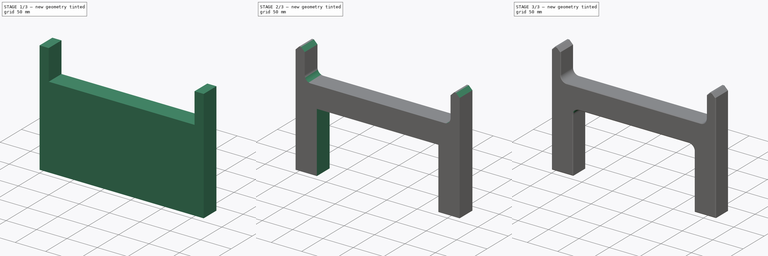
[diagram: build sequence overview — one tinted view per stage of 3, left to right]
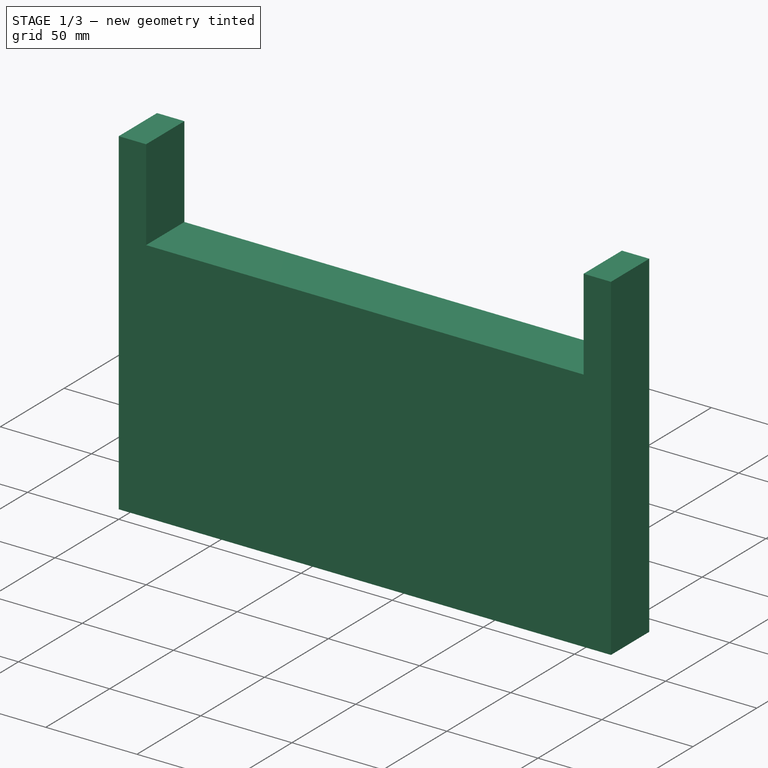
[diagram: stage 1 of 3 — iso view after this stage's code; geometry added in this stage tinted green]
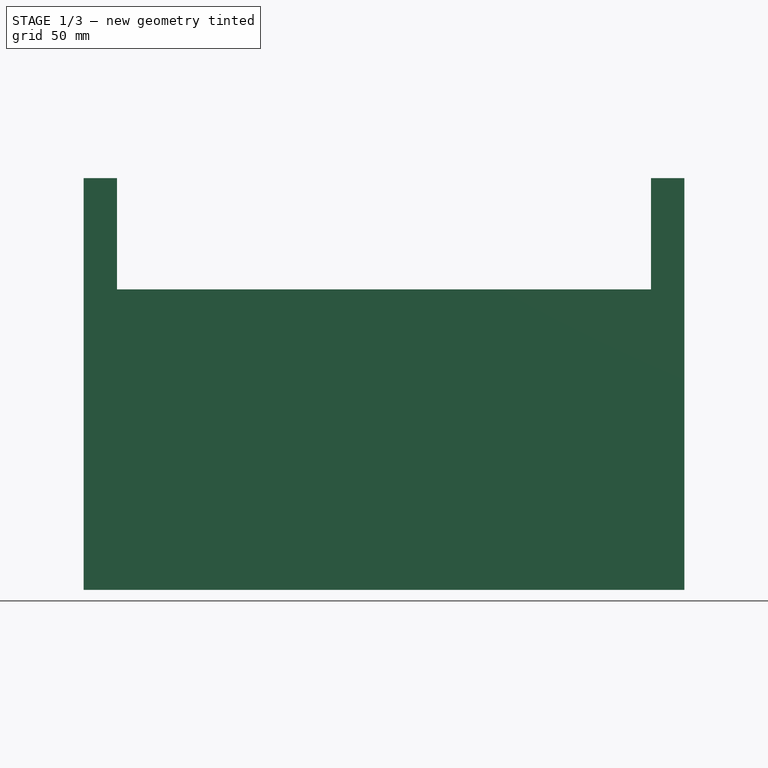
[diagram: stage 1 of 3 — front view after this stage's code; geometry added in this stage tinted green]
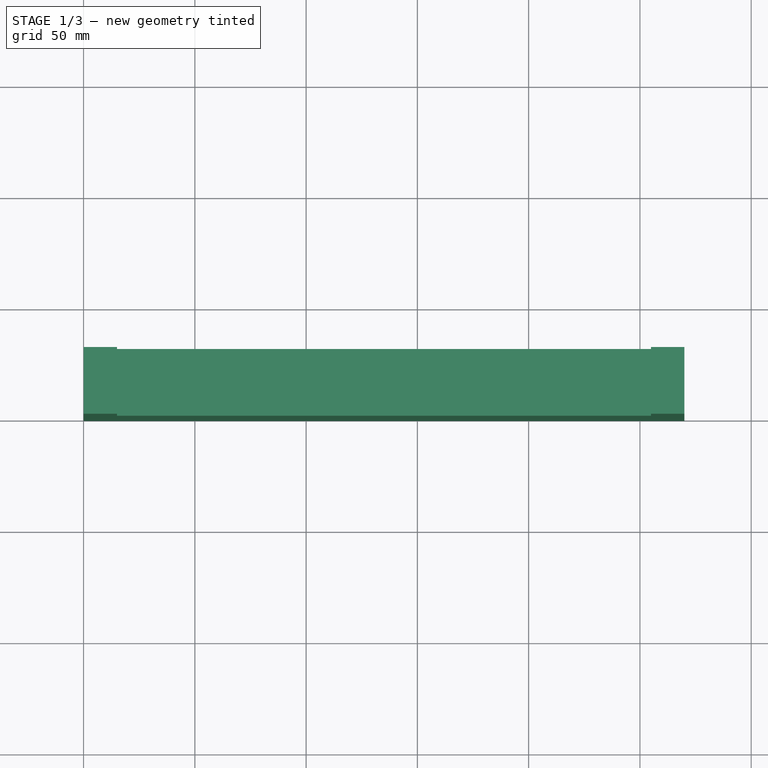
[diagram: stage 1 of 3 — top view after this stage's code; geometry added in this stage tinted green]
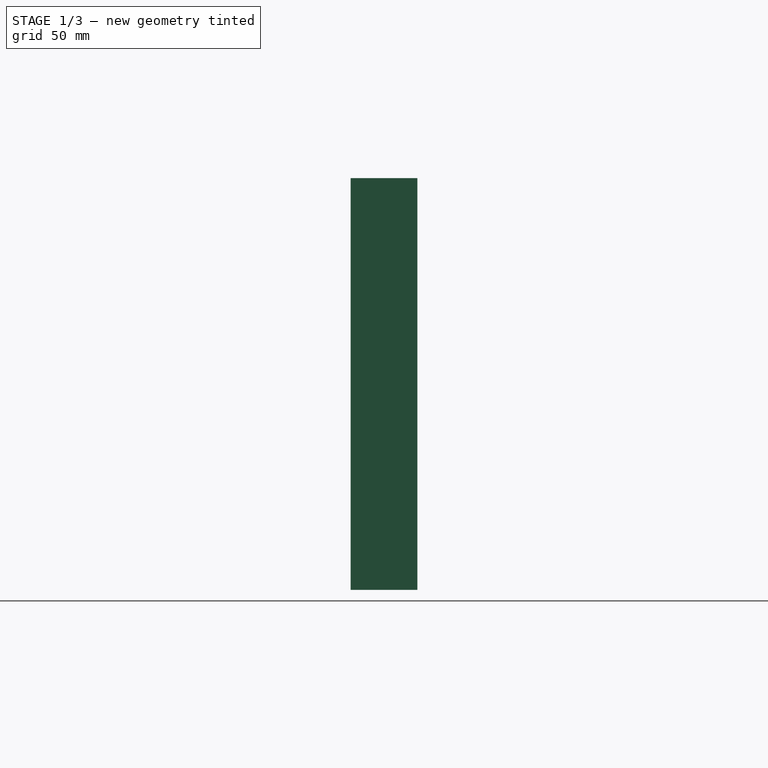
[diagram: stage 1 of 3 — right view after this stage's code; geometry added in this stage tinted green]
FCSTD DOCUMENT  (FreeCAD 0.17R7506 (Git))
Label: xy_parallel_check_fixture
License: CreativeCommons Attribution-ShareAlike
LicenseURL: http://creativecommons.org/licenses/by-sa/4.0/
objects: Sketcher::SketchObject×4, PartDesign::Pocket×2, PartDesign::Fillet×2, PartDesign::Chamfer×2, PartDesign::Pad×1, PartDesign::Body×1
note: 15 computed .brp shape members not serialized (recipe doc carries the construction recipe); baked Part::Feature solids carry a one-line shape summary decoded from their .brp

FEATURE [Sketcher::SketchObject] Sketch
  MapMode = 5
  Support = -> [XY_Plane]
  sketch-geometry (4):
    g0: LineSegment StartX=0 StartY=30 StartZ=0 EndX=270 EndY=30 EndZ=0
    g1: LineSegment StartX=270 StartY=30 StartZ=0 EndX=270 EndY=0 EndZ=0
    g2: LineSegment StartX=270 StartY=0 StartZ=0 EndX=0 EndY=0 EndZ=0
    g3: LineSegment StartX=0 StartY=0 StartZ=0 EndX=0 EndY=30 EndZ=0
  constraints (12):
    c: Coincident(g0,g1)
    c: Coincident(g1,g2)
    c: Coincident(g2,g3)
    c: Coincident(g3,g0)
    c: Horizontal(g0)
    c: Horizontal(g2)
    c: Vertical(g1)
    c: Vertical(g3)
    c: PointOnObject(g1,g-1)
    c: Coincident(g2,g-1)
    c: DistanceY(g3,g3) = 30
    c: DistanceX(g2,g2) = 270
FEATURE [PartDesign::Pad] Pad
  Length = 185
  Length2 = 100
  Profile = -> Sketch
  Type = 0
FEATURE [Sketcher::SketchObject] Sketch001
  ExternalGeometry = -> [Pad]
  MapMode = 5
  Placement = pos=(0,0,185) rot=(0,0,1;0rad)
  Support = -> [Pad]
  sketch-geometry (6):
    g0: LineSegment StartX=15 StartY=64.2632 StartZ=0 EndX=255 EndY=64.2632 EndZ=0
    g1: LineSegment StartX=255 StartY=64.2632 StartZ=0 EndX=255 EndY=-16.6684 EndZ=0
    g2: LineSegment StartX=255 StartY=-16.6684 StartZ=0 EndX=15 EndY=-16.6684 EndZ=0
    g3: LineSegment StartX=15 StartY=-16.6684 StartZ=0 EndX=15 EndY=64.2632 EndZ=0
    g4: LineSegment [constr] StartX=0 StartY=0 StartZ=0 EndX=15 EndY=0 EndZ=0
    g5: LineSegment [constr] StartX=255 StartY=0 StartZ=0 EndX=270 EndY=0 EndZ=0
  constraints (16):
    c: Coincident(g0,g1)
    c: Coincident(g1,g2)
    c: Coincident(g2,g3)
    c: Coincident(g3,g0)
    c: Horizontal(g0)
    c: Horizontal(g2)
    c: Vertical(g1)
    c: Vertical(g3)
    c: DistanceX(g0,g0) = 240
    c: Coincident(g4,g-1)
    c: PointOnObject(g4,g3)
    c: Horizontal(g4)
    c: Horizontal(g5)
    c: Coincident(g5,g-3)
    c: PointOnObject(g5,g1)
    c: Equal(g4,g5)
FEATURE [PartDesign::Pocket] Pocket
  BaseFeature = -> Pad
  Length = 50
  Profile = -> Sketch001
  Type = 0
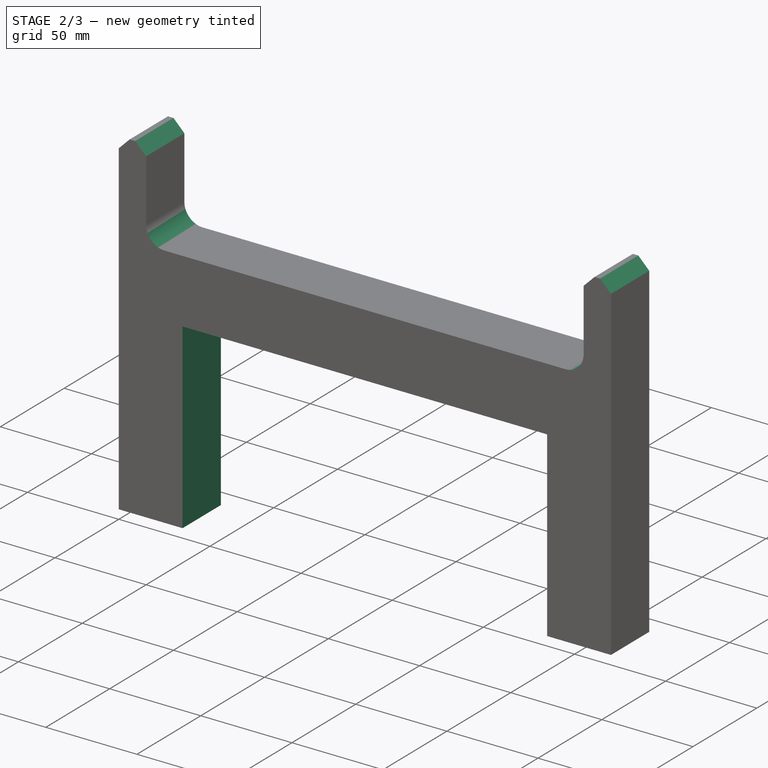
[diagram: stage 2 of 3 — iso view after this stage's code; geometry added in this stage tinted green]
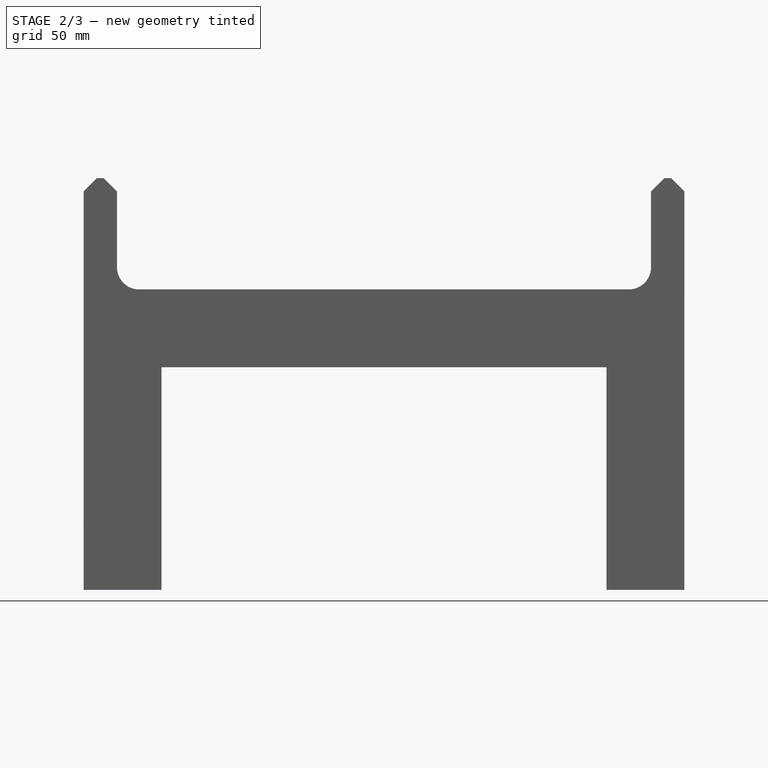
[diagram: stage 2 of 3 — front view after this stage's code; geometry added in this stage tinted green]
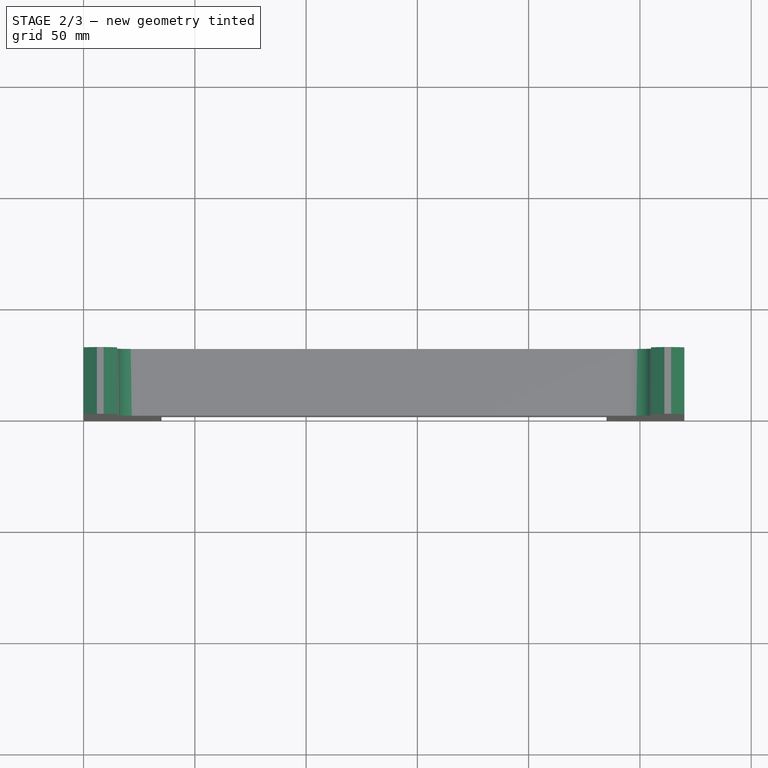
[diagram: stage 2 of 3 — top view after this stage's code; geometry added in this stage tinted green]
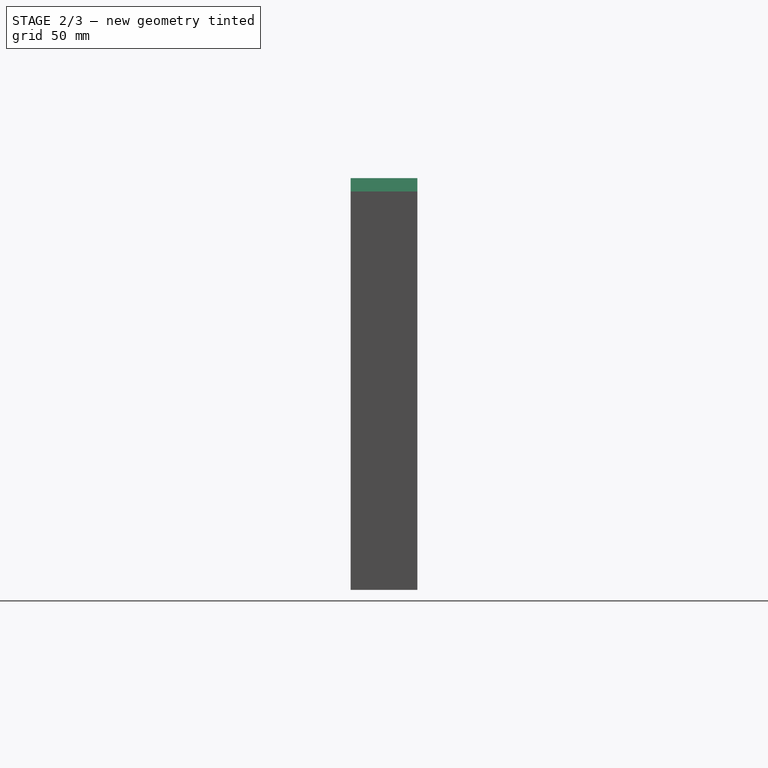
[diagram: stage 2 of 3 — right view after this stage's code; geometry added in this stage tinted green]
FEATURE [PartDesign::Fillet] Fillet
  Base = -> Pocket [Edge19,Edge17]
  BaseFeature = -> Pocket
  Radius = 10
FEATURE [PartDesign::Chamfer] Chamfer
  Base = -> Fillet [Edge29,Edge26,Edge13,Edge16]
  BaseFeature = -> Fillet
  Size = 6
FEATURE [Sketcher::SketchObject] Sketch002
  MapMode = 5
  Placement = pos=(0,0,0) rot=(1,0,0;1.5708rad)
  Support = -> [Chamfer]
FEATURE [Sketcher::SketchObject] Sketch003
  ExternalGeometry = -> [Chamfer]
  MapMode = 5
  Placement = pos=(0,0,0) rot=(1,0,0;1.5708rad)
  Support = -> [Chamfer]
  sketch-geometry (6):
    g0: LineSegment StartX=35 StartY=100 StartZ=0 EndX=235 EndY=100 EndZ=0
    g1: LineSegment StartX=235 StartY=100 StartZ=0 EndX=235 EndY=0 EndZ=0
    g2: LineSegment StartX=235 StartY=0 StartZ=0 EndX=35 EndY=0 EndZ=0
    g3: LineSegment StartX=35 StartY=0 StartZ=0 EndX=35 EndY=100 EndZ=0
    g4: LineSegment [constr] StartX=0 StartY=0 StartZ=0 EndX=35 EndY=0 EndZ=0
    g5: LineSegment [constr] StartX=235 StartY=0 StartZ=0 EndX=270 EndY=0 EndZ=0
  constraints (18):
    c: Coincident(g0,g1)
    c: Coincident(g1,g2)
    c: Coincident(g2,g3)
    c: Coincident(g3,g0)
    c: Horizontal(g0)
    c: Horizontal(g2)
    c: Vertical(g1)
    c: Vertical(g3)
    c: Horizontal(g5)
    c: Horizontal(g4)
    c: Equal(g5,g4)
    c: Coincident(g4,g-1)
    c: Coincident(g5,g-3)
    c: PointOnObject(g5,g1)
    c: PointOnObject(g4,g3)
    c: DistanceX(g0,g0) = 200
    c: Coincident(g2,g4)
    c: DistanceY(g3,g3) = 100
FEATURE [PartDesign::Pocket] Pocket001
  BaseFeature = -> Chamfer
  Length = 5
  Profile = -> Sketch003
  Type = 1
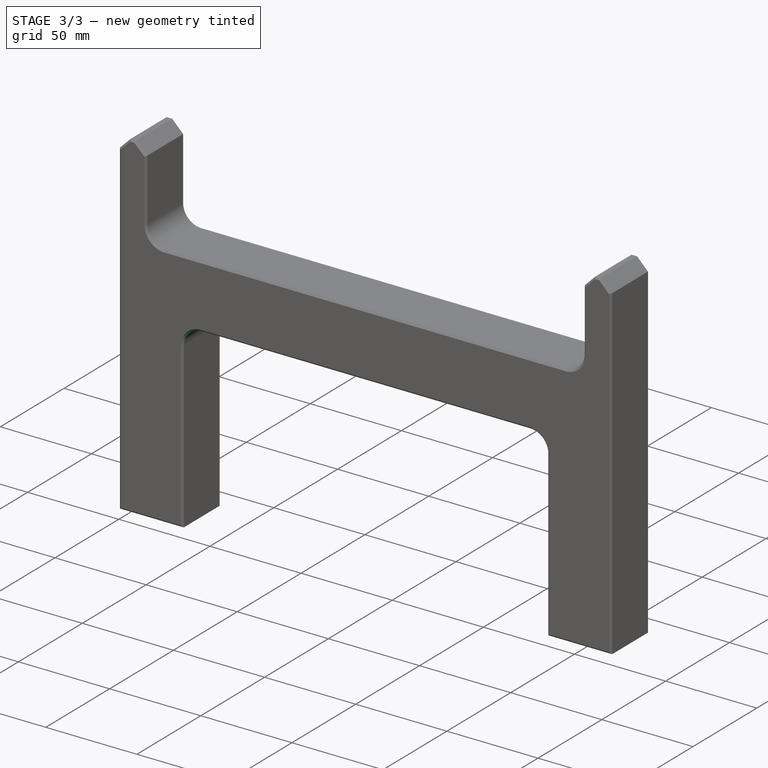
[diagram: stage 3 of 3 — iso view after this stage's code; geometry added in this stage tinted green]
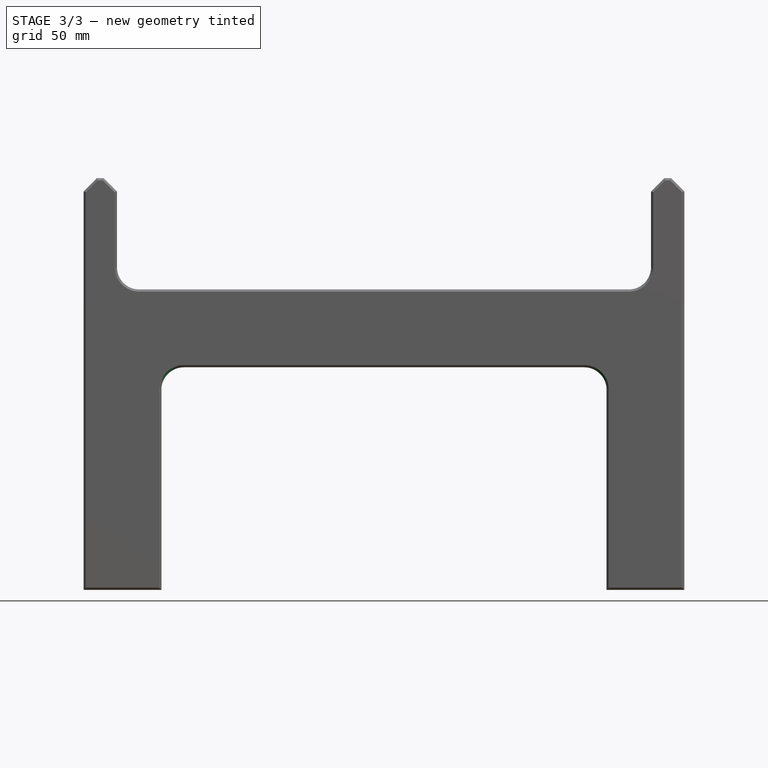
[diagram: stage 3 of 3 — front view after this stage's code; geometry added in this stage tinted green]
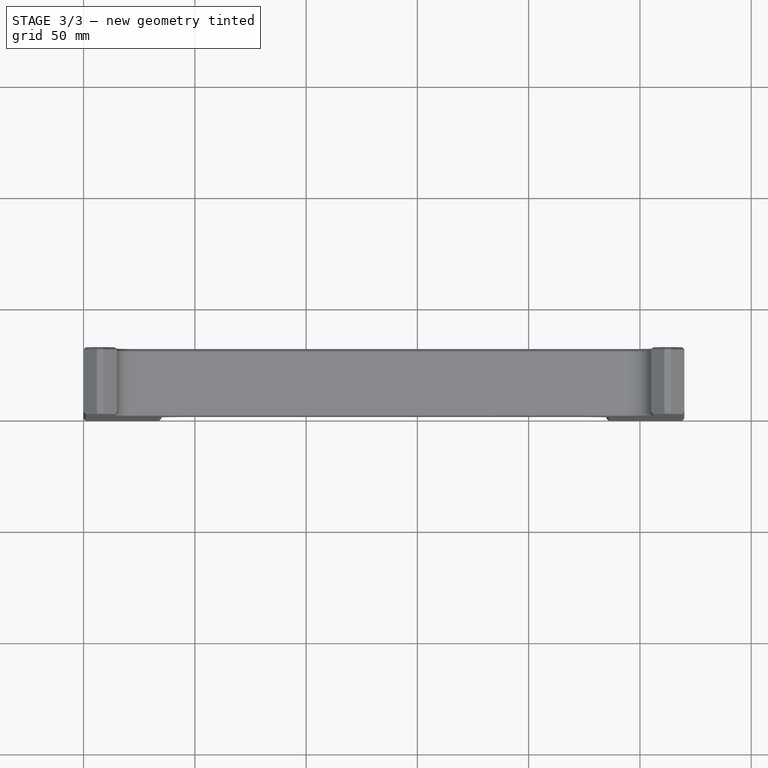
[diagram: stage 3 of 3 — top view after this stage's code; geometry added in this stage tinted green]
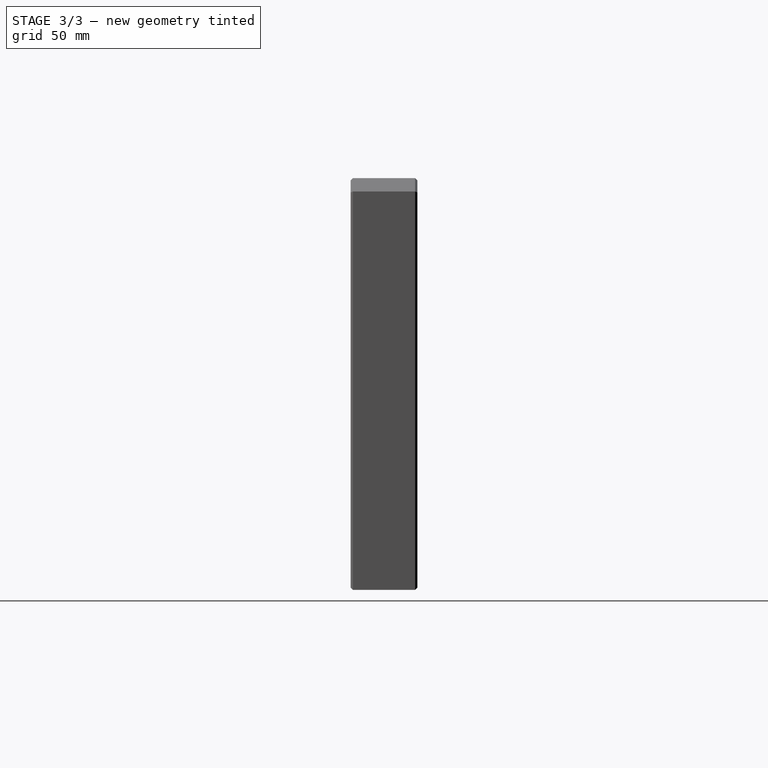
[diagram: stage 3 of 3 — right view after this stage's code; geometry added in this stage tinted green]
FEATURE [PartDesign::Fillet] Fillet001
  Base = -> Pocket001 [Edge41,Edge43]
  BaseFeature = -> Pocket001
  Radius = 10
FEATURE [PartDesign::Chamfer] Chamfer001
  Base = -> Fillet001 [Face1,Face22]
  BaseFeature = -> Fillet001
  Size = 1
FEATURE [PartDesign::Body] Body
  Model = -> [Sketch,Pad,Sketch001,Pocket,Fillet,Chamfer,Sketch002,Sketch003,Pocket001,Fillet001,Chamfer001]
  Origin = -> BodyOrigin
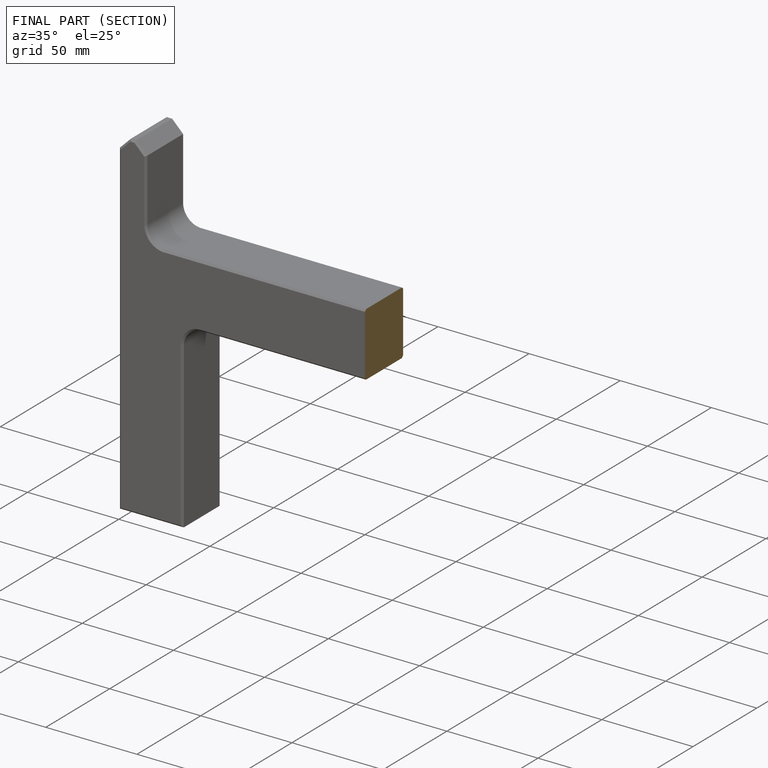
[diagram: finished part — half-section view (interior)]
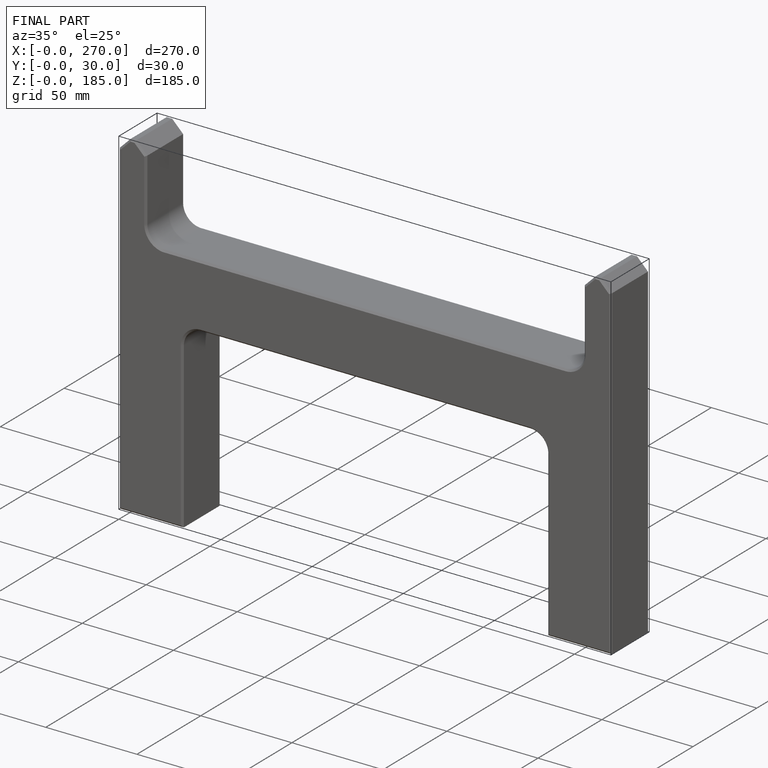
[diagram: finished part — iso view with bounding-box wireframe]
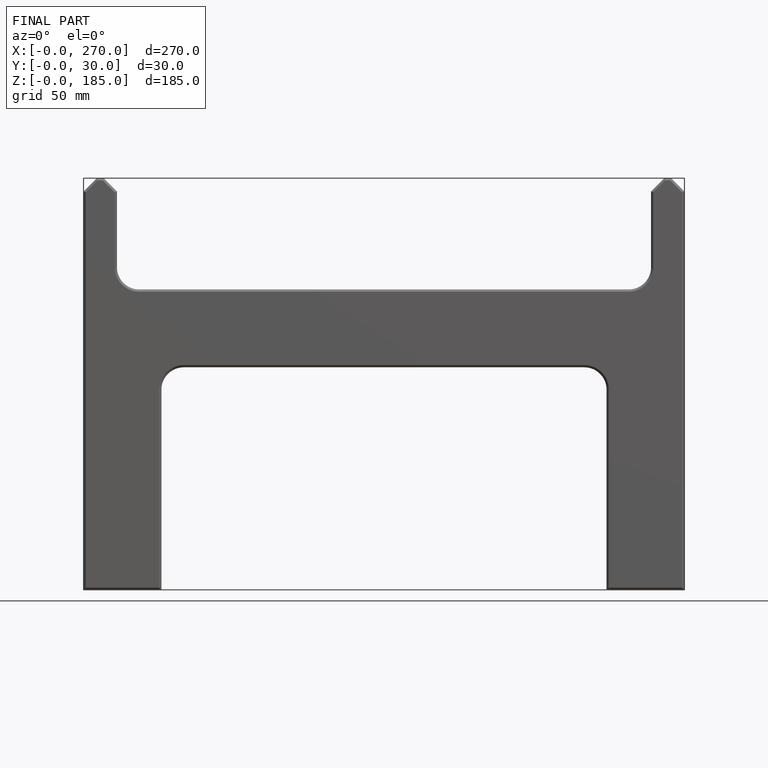
[diagram: finished part — front view with bounding-box wireframe]
